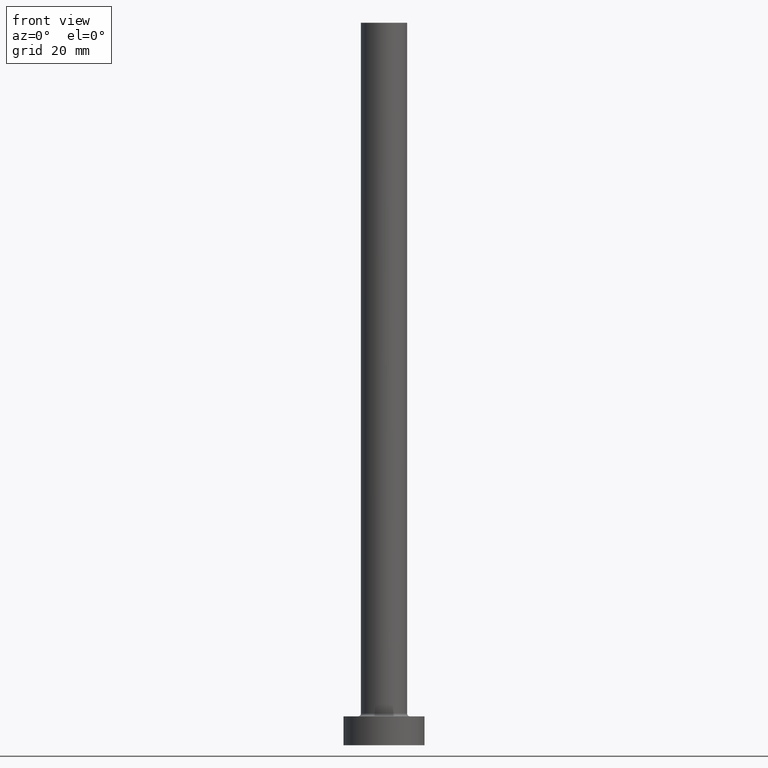
[diagram: clean part render]
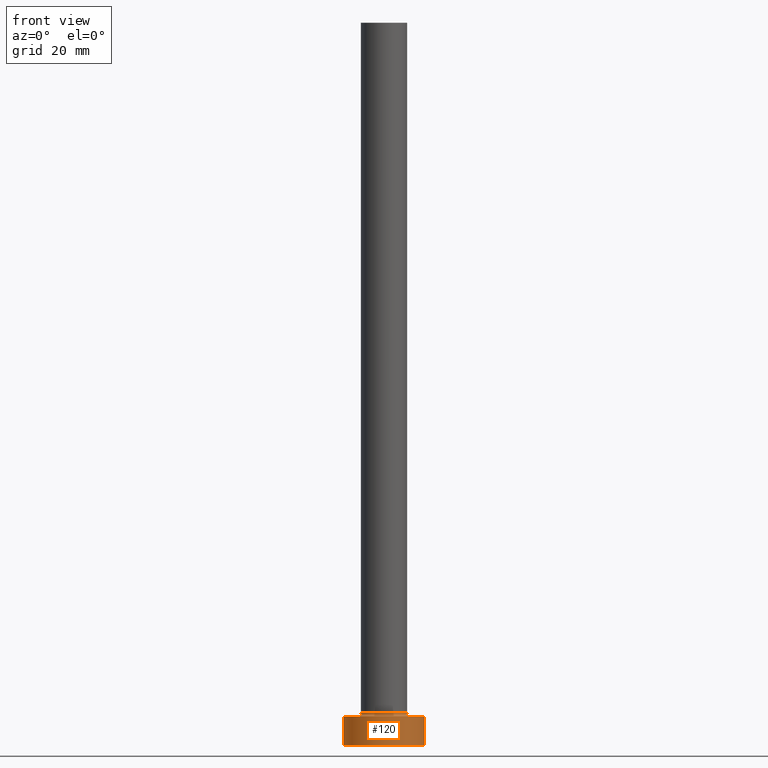
[diagram: same view with one face highlighted and labeled with its STEP entity id]
A machine part, front view. The second image highlights one B-rep face of the part: STEP entity #120.
In plain terms, the highlighted cylindrical surface (partial cylindrical patch) has radius 7 mm, axis along (-0, -0, -1).
Its self-contained STEP definition (entity closure, byte-faithful):
#21 = ORIENTED_EDGE ( 'NONE', *, *, #399, .F. ) ;
#45 = CYLINDRICAL_SURFACE ( 'NONE', #261, 7.000000000000000000 ) ;
#78 = DIRECTION ( 'NONE',  ( 0.000000000000000000, 0.000000000000000000, 1.000000000000000000 ) ) ;
#84 = DIRECTION ( 'NONE',  ( -1.000000000000000000, 0.000000000000000000, 0.000000000000000000 ) ) ;
#88 = DIRECTION ( 'NONE',  ( -0.000000000000000000, -0.000000000000000000, -1.000000000000000000 ) ) ;
#109 = EDGE_CURVE ( 'NONE', #170, #307, #126, .T. ) ;
#120 = ADVANCED_FACE ( 'NONE', ( #410 ), #45, .T. ) ;
#126 = LINE ( 'NONE', #229, #404 ) ;
#130 = DIRECTION ( 'NONE',  ( 1.000000000000000000, 0.000000000000000000, 0.000000000000000000 ) ) ;
#134 = VERTEX_POINT ( 'NONE', #195 ) ;
#169 = AXIS2_PLACEMENT_3D ( 'NONE', #273, #212, #130 ) ;
#170 = VERTEX_POINT ( 'NONE', #278 ) ;
#176 = EDGE_CURVE ( 'NONE', #385, #134, #302, .T. ) ;
#189 = CARTESIAN_POINT ( 'NONE',  ( 0.000000000000000000, 0.000000000000000000, 0.000000000000000000 ) ) ;
#192 = CARTESIAN_POINT ( 'NONE',  ( 0.000000000000000000, 0.000000000000000000, 5.000000000000000000 ) ) ;
#194 = AXIS2_PLACEMENT_3D ( 'NONE', #189, #78, #224 ) ;
#195 = CARTESIAN_POINT ( 'NONE',  ( 7.000000000000000000, 8.572527594031473190E-16, 0.000000000000000000 ) ) ;
#212 = DIRECTION ( 'NONE',  ( 0.000000000000000000, 0.000000000000000000, 1.000000000000000000 ) ) ;
#216 = VECTOR ( 'NONE', #88, 1000.000000000000000 ) ;
#224 = DIRECTION ( 'NONE',  ( 1.000000000000000000, 0.000000000000000000, 0.000000000000000000 ) ) ;
#229 = CARTESIAN_POINT ( 'NONE',  ( -7.000000000000000000, 0.000000000000000000, 5.000000000000000000 ) ) ;
#240 = ORIENTED_EDGE ( 'NONE', *, *, #292, .T. ) ;
#257 = CIRCLE ( 'NONE', #194, 7.000000000000000000 ) ;
#261 = AXIS2_PLACEMENT_3D ( 'NONE', #192, #444, #84 ) ;
#273 = CARTESIAN_POINT ( 'NONE',  ( 0.000000000000000000, 0.000000000000000000, 5.000000000000000000 ) ) ;
#278 = CARTESIAN_POINT ( 'NONE',  ( -7.000000000000000000, 0.000000000000000000, 5.000000000000000000 ) ) ;
#292 = EDGE_CURVE ( 'NONE', #307, #134, #257, .T. ) ;
#300 = DIRECTION ( 'NONE',  ( -0.000000000000000000, -0.000000000000000000, -1.000000000000000000 ) ) ;
#302 = LINE ( 'NONE', #383, #216 ) ;
#307 = VERTEX_POINT ( 'NONE', #436 ) ;
#382 = CIRCLE ( 'NONE', #169, 7.000000000000000000 ) ;
#383 = CARTESIAN_POINT ( 'NONE',  ( 7.000000000000000000, 8.572527594031473190E-16, 5.000000000000000000 ) ) ;
#385 = VERTEX_POINT ( 'NONE', #424 ) ;
#399 = EDGE_CURVE ( 'NONE', #170, #385, #382, .T. ) ;
#404 = VECTOR ( 'NONE', #300, 1000.000000000000000 ) ;
#410 = FACE_OUTER_BOUND ( 'NONE', #461, .T. ) ;
#424 = CARTESIAN_POINT ( 'NONE',  ( 7.000000000000000000, 8.572527594031473190E-16, 5.000000000000000000 ) ) ;
#435 = ORIENTED_EDGE ( 'NONE', *, *, #176, .F. ) ;
#436 = CARTESIAN_POINT ( 'NONE',  ( -7.000000000000000000, 0.000000000000000000, 0.000000000000000000 ) ) ;
#444 = DIRECTION ( 'NONE',  ( -0.000000000000000000, -0.000000000000000000, -1.000000000000000000 ) ) ;
#457 = ORIENTED_EDGE ( 'NONE', *, *, #109, .T. ) ;
#461 = EDGE_LOOP ( 'NONE', ( #435, #21, #457, #240 ) ) ;